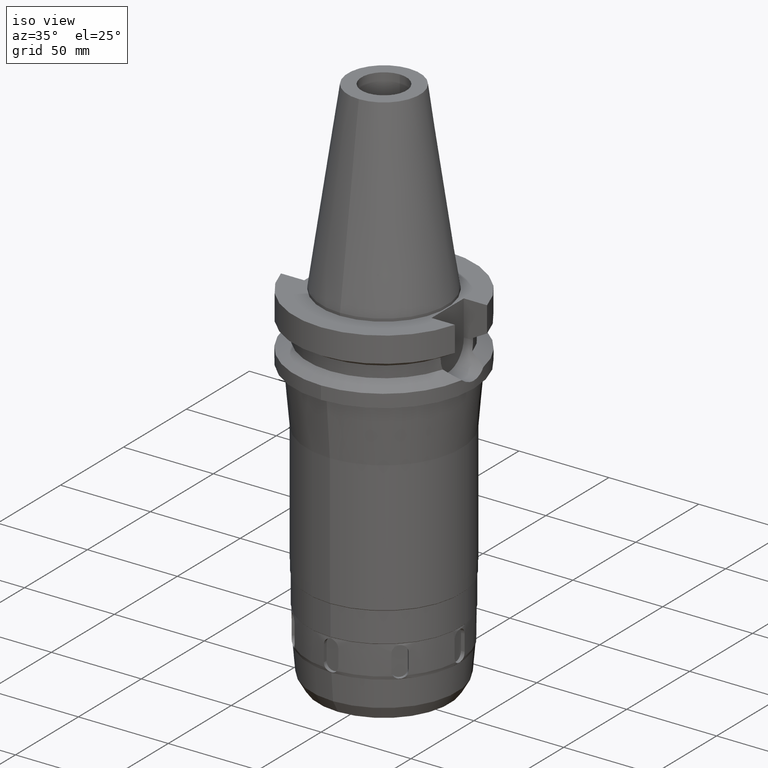
[diagram: clean part render]
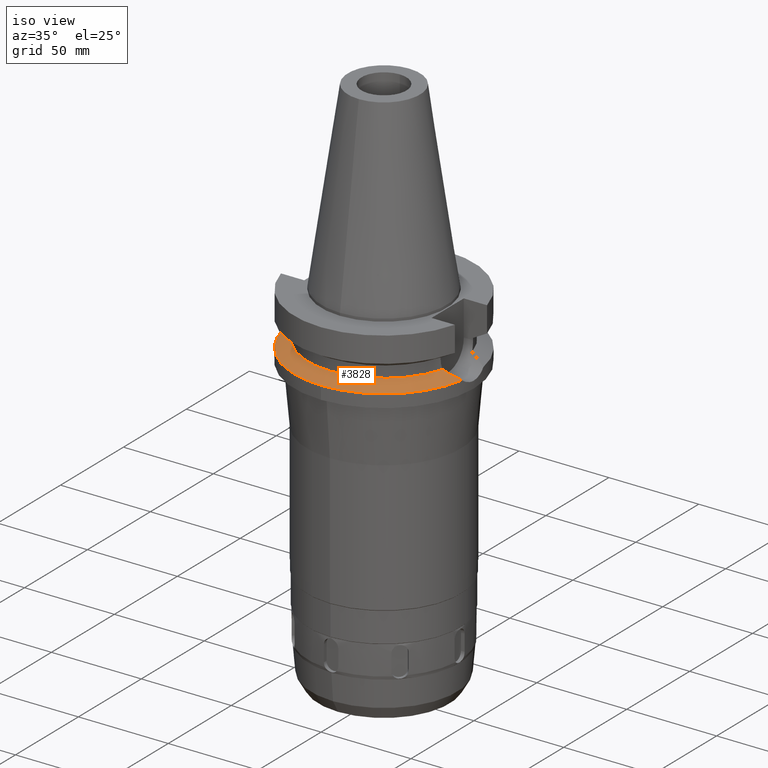
[diagram: same view with one face highlighted and labeled with its STEP entity id]
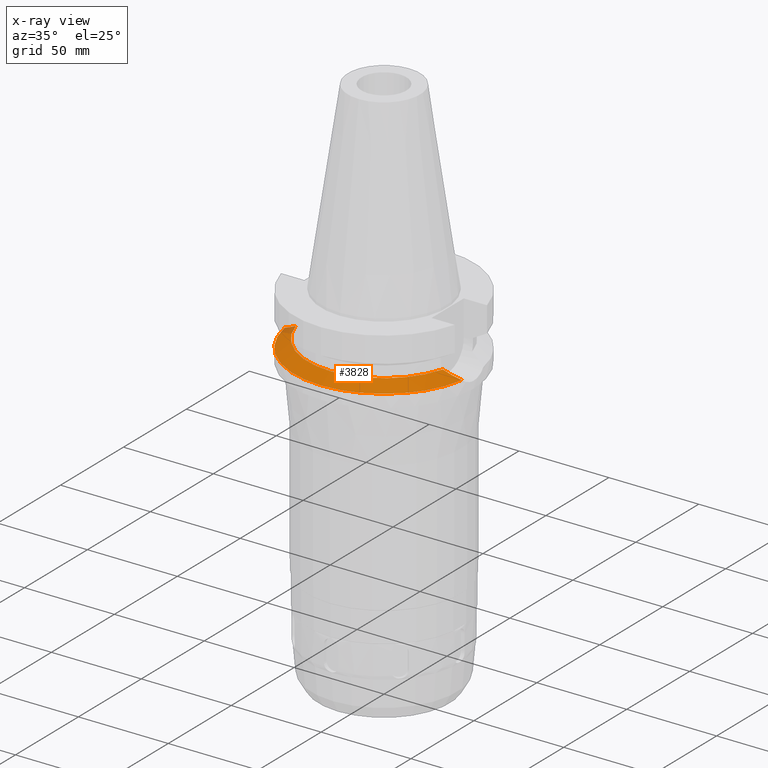
[diagram: x-ray of the same camera — body ghosted, the highlighted face saturated]
A machine part, iso view. The second image highlights one B-rep face of the part: STEP entity #3828.
The next image is the same camera in x-ray: the body ghosted, the highlighted face saturated — about 2% of this face is hidden behind the body in this view.
In plain terms, the highlighted conical surface has half-angle 60 deg.
Its self-contained STEP definition (entity closure, byte-faithful):
#1448=CARTESIAN_POINT('',(4.926250064874E1,-8.556052234130E0,
-3.073730776427E1));
#1491=CARTESIAN_POINT('',(-4.926250064874E1,-8.556052234130E0,
-3.073730776427E1));
#1492=CARTESIAN_POINT('',(-4.845703795324E1,-9.018279848343E0,
-3.032479950768E1));
#1493=CARTESIAN_POINT('',(-4.675083330782E1,-9.863851658169E0,
-2.944998892214E1));
#1494=CARTESIAN_POINT('',(-4.396858079629E1,-1.090830103845E1,
-2.801904868482E1));
#1495=CARTESIAN_POINT('',(-4.191782369483E1,-1.147752366838E1,
-2.695998978891E1));
#1496=CARTESIAN_POINT('',(-4.085052569294E1,-1.172538061688E1,
-2.640718074535E1));
#1501=CARTESIAN_POINT('',(0.E0,0.E0,-2.640718074535E1));
#1502=DIRECTION('',(0.E0,0.E0,1.E0));
#1503=DIRECTION('',(-9.611888398338E-1,-2.758913086325E-1,0.E0));
#1504=AXIS2_PLACEMENT_3D('',#1501,#1502,#1503);
#1509=CARTESIAN_POINT('',(0.E0,0.E0,-2.640718074535E1));
#1510=DIRECTION('',(0.E0,0.E0,1.E0));
#1511=DIRECTION('',(0.E0,-1.E0,0.E0));
#1512=AXIS2_PLACEMENT_3D('',#1509,#1510,#1511);
#1517=CARTESIAN_POINT('',(4.085052569294E1,-1.172538061688E1,
-2.640718074535E1));
#1518=CARTESIAN_POINT('',(4.197814318263E1,-1.146351576792E1,
-2.699123238310E1));
#1519=CARTESIAN_POINT('',(4.410799442959E1,-1.086595553746E1,
-2.809094628607E1));
#1520=CARTESIAN_POINT('',(4.691875228971E1,-9.789468526478E0,
-2.953616546867E1));
#1521=CARTESIAN_POINT('',(4.852591998132E1,-8.978750797925E0,
-3.036007662910E1));
#1522=CARTESIAN_POINT('',(4.926250064874E1,-8.556052234130E0,
-3.073730776427E1));
#1527=CARTESIAN_POINT('',(0.E0,0.E0,-3.073730776427E1));
#1528=DIRECTION('',(0.E0,0.E0,-1.E0));
#1529=DIRECTION('',(9.852500129747E-1,-1.711210446826E-1,0.E0));
#1530=AXIS2_PLACEMENT_3D('',#1527,#1528,#1529);
#1535=CARTESIAN_POINT('',(0.E0,0.E0,-3.073730776427E1));
#1536=DIRECTION('',(0.E0,0.E0,-1.E0));
#1537=DIRECTION('',(0.E0,-1.E0,0.E0));
#1538=AXIS2_PLACEMENT_3D('',#1535,#1536,#1537);
#2696=VERTEX_POINT('',#1448);
#2699=CARTESIAN_POINT('',(0.E0,-5.E1,-3.073730776427E1));
#2700=VERTEX_POINT('',#2699);
#2701=VERTEX_POINT('',#1517);
#2712=VERTEX_POINT('',#1491);
#2713=VERTEX_POINT('',#1496);
#2714=CARTESIAN_POINT('',(0.E0,-4.25E1,-2.640718074535E1));
#2715=VERTEX_POINT('',#2714);
#3811=CARTESIAN_POINT('',(0.E0,0.E0,-2.857224425481E1));
#3812=DIRECTION('',(0.E0,0.E0,-1.E0));
#3813=DIRECTION('',(0.E0,-1.E0,0.E0));
#3814=AXIS2_PLACEMENT_3D('',#3811,#3812,#3813);
#3815=CONICAL_SURFACE('',#3814,4.625E1,6.E1);
#3817=ORIENTED_EDGE('',*,*,#3816,.T.);
#3819=ORIENTED_EDGE('',*,*,#3818,.T.);
#3821=ORIENTED_EDGE('',*,*,#3820,.T.);
#3822=ORIENTED_EDGE('',*,*,#3792,.T.);
#3823=ORIENTED_EDGE('',*,*,#3780,.T.);
#3825=ORIENTED_EDGE('',*,*,#3824,.T.);
#3826=EDGE_LOOP('',(#3817,#3819,#3821,#3822,#3823,#3825));
#3827=FACE_OUTER_BOUND('',#3826,.F.);
#1497=B_SPLINE_CURVE_WITH_KNOTS('',3,(#1491,#1492,#1493,#1494,#1495,#1496),
.UNSPECIFIED.,.F.,.F.,(4,1,1,4),(0.E0,3.333333333333E-1,6.666666666667E-1,1.E0),
.UNSPECIFIED.);
#1505=CIRCLE('',#1504,4.25E1);
#1513=CIRCLE('',#1512,4.25E1);
#1523=B_SPLINE_CURVE_WITH_KNOTS('',3,(#1517,#1518,#1519,#1520,#1521,#1522),
.UNSPECIFIED.,.F.,.F.,(4,1,1,4),(0.E0,3.333333333333E-1,6.666666666667E-1,1.E0),
.UNSPECIFIED.);
#1531=CIRCLE('',#1530,5.E1);
#1539=CIRCLE('',#1538,5.E1);
#3780=EDGE_CURVE('',#2696,#2700,#1531,.T.);
#3792=EDGE_CURVE('',#2701,#2696,#1523,.T.);
#3816=EDGE_CURVE('',#2712,#2713,#1497,.T.);
#3818=EDGE_CURVE('',#2713,#2715,#1505,.T.);
#3820=EDGE_CURVE('',#2715,#2701,#1513,.T.);
#3824=EDGE_CURVE('',#2700,#2712,#1539,.T.);
#3828=ADVANCED_FACE('',(#3827),#3815,.T.);